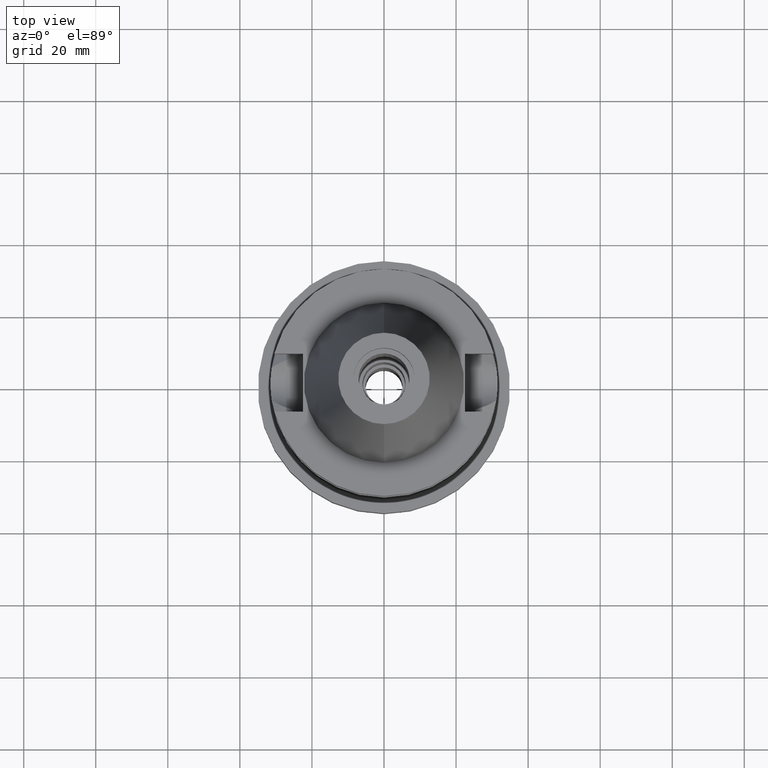
[diagram: clean part render]
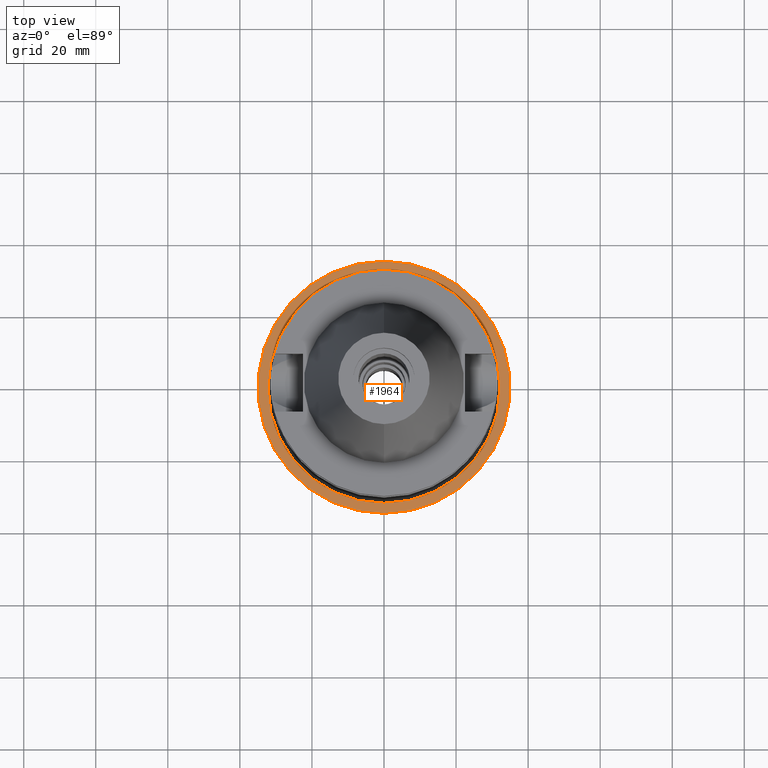
[diagram: same view with one face highlighted and labeled with its STEP entity id]
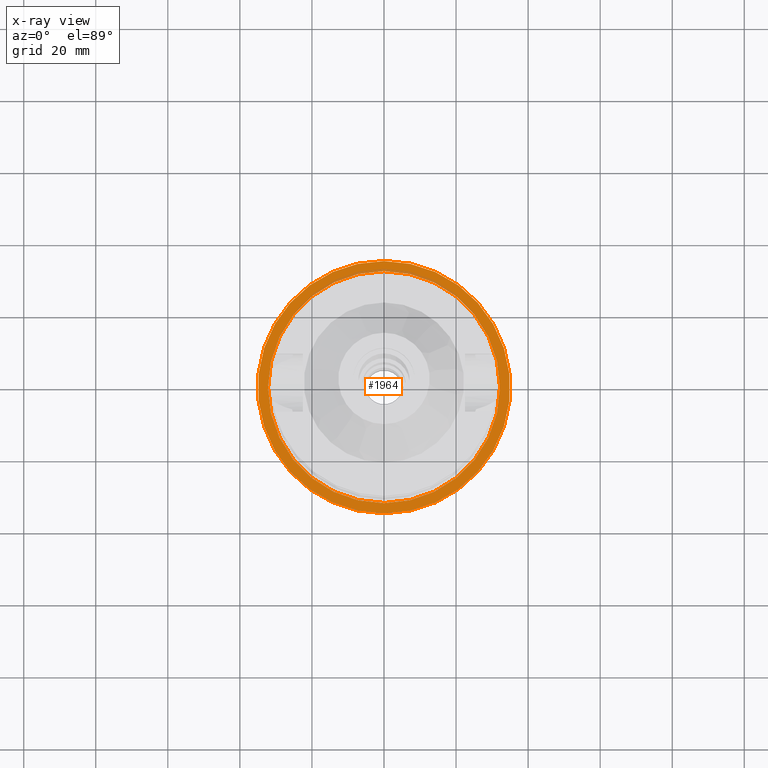
[diagram: x-ray of the same camera — body ghosted, the highlighted face saturated]
A machine part, top view. The second image highlights one B-rep face of the part: STEP entity #1964.
The next image is the same camera in x-ray: the body ghosted, the highlighted face saturated — about 4% of this face is hidden behind the body in this view.
In plain terms, the highlighted planar face has unit normal (0, 0, -1).
Its self-contained STEP definition (entity closure, byte-faithful):
#703=CARTESIAN_POINT('',(0.E0,2.134191976874E-14,-7.5E1));
#704=DIRECTION('',(0.E0,0.E0,-1.E0));
#705=DIRECTION('',(0.E0,-1.E0,0.E0));
#706=AXIS2_PLACEMENT_3D('',#703,#704,#705);
#711=CARTESIAN_POINT('',(0.E0,2.134191976874E-14,-7.5E1));
#712=DIRECTION('',(0.E0,0.E0,-1.E0));
#713=DIRECTION('',(0.E0,1.E0,0.E0));
#714=AXIS2_PLACEMENT_3D('',#711,#712,#713);
#719=CARTESIAN_POINT('',(0.E0,0.E0,-7.5E1));
#720=DIRECTION('',(0.E0,0.E0,1.E0));
#721=DIRECTION('',(0.E0,-1.E0,0.E0));
#722=AXIS2_PLACEMENT_3D('',#719,#720,#721);
#727=CARTESIAN_POINT('',(0.E0,0.E0,-7.5E1));
#728=DIRECTION('',(0.E0,0.E0,1.E0));
#729=DIRECTION('',(0.E0,1.E0,0.E0));
#730=AXIS2_PLACEMENT_3D('',#727,#728,#729);
#1333=CARTESIAN_POINT('',(0.E0,3.5E1,-7.5E1));
#1334=VERTEX_POINT('',#1333);
#1335=CARTESIAN_POINT('',(0.E0,-3.5E1,-7.5E1));
#1336=VERTEX_POINT('',#1335);
#1337=CARTESIAN_POINT('',(0.E0,-3.22E1,-7.5E1));
#1338=CARTESIAN_POINT('',(0.E0,3.22E1,-7.5E1));
#1339=VERTEX_POINT('',#1337);
#1340=VERTEX_POINT('',#1338);
#1949=CARTESIAN_POINT('',(0.E0,0.E0,-7.5E1));
#1950=DIRECTION('',(0.E0,0.E0,-1.E0));
#1951=DIRECTION('',(0.E0,-1.E0,0.E0));
#1952=AXIS2_PLACEMENT_3D('',#1949,#1950,#1951);
#1953=PLANE('',#1952);
#1955=ORIENTED_EDGE('',*,*,#1954,.T.);
#1957=ORIENTED_EDGE('',*,*,#1956,.T.);
#1958=EDGE_LOOP('',(#1955,#1957));
#1959=FACE_OUTER_BOUND('',#1958,.F.);
#1960=ORIENTED_EDGE('',*,*,#1928,.T.);
#1961=ORIENTED_EDGE('',*,*,#1944,.T.);
#1962=EDGE_LOOP('',(#1960,#1961));
#1963=FACE_BOUND('',#1962,.F.);
#707=CIRCLE('',#706,3.5E1);
#715=CIRCLE('',#714,3.5E1);
#723=CIRCLE('',#722,3.22E1);
#731=CIRCLE('',#730,3.22E1);
#1928=EDGE_CURVE('',#1339,#1340,#723,.T.);
#1944=EDGE_CURVE('',#1340,#1339,#731,.T.);
#1954=EDGE_CURVE('',#1336,#1334,#707,.T.);
#1956=EDGE_CURVE('',#1334,#1336,#715,.T.);
#1964=ADVANCED_FACE('',(#1959,#1963),#1953,.F.);